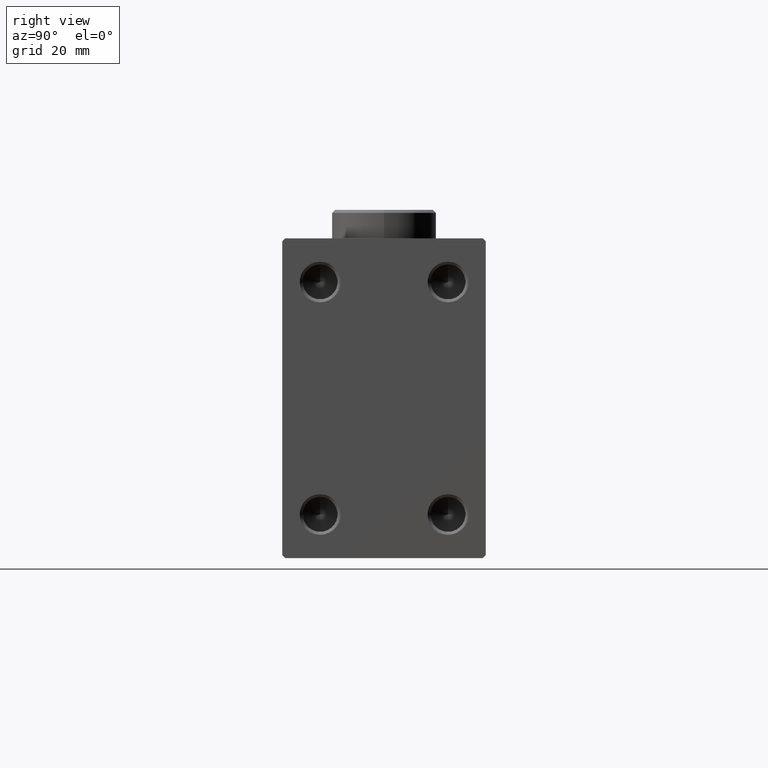
[diagram: clean part render]
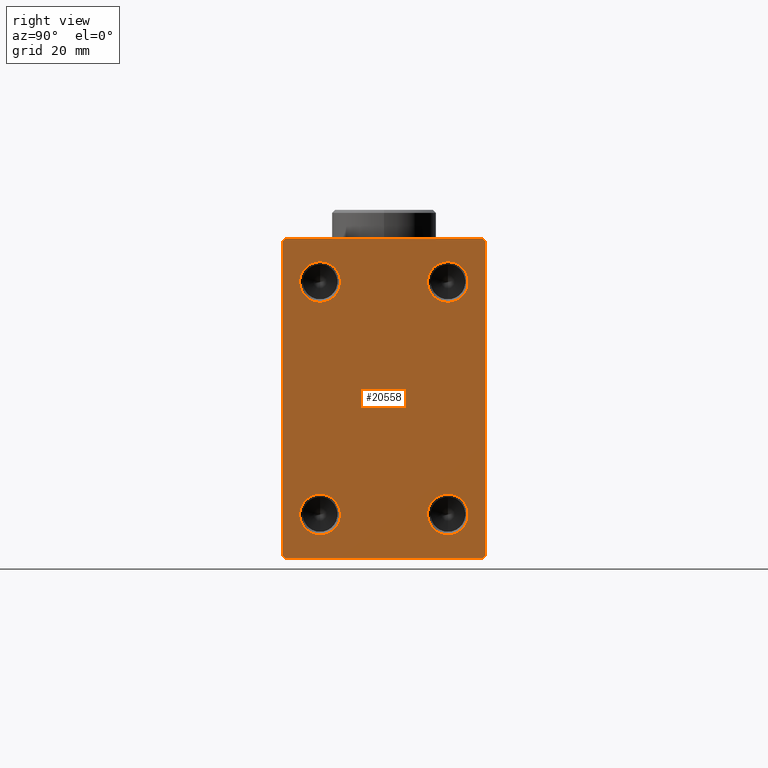
[diagram: same view with one face highlighted and labeled with its STEP entity id]
A machine part, right view. The second image highlights one B-rep face of the part: STEP entity #20558.
In plain terms, the highlighted planar face has unit normal (1, 0, 0).
Its self-contained STEP definition (entity closure, byte-faithful):
#304 = CARTESIAN_POINT ( 'NONE',  ( 96.00000000000000000, -17.49999999999999645, 26.99999999999997158 ) ) ;
#332 = CARTESIAN_POINT ( 'NONE',  ( 96.00000000000000000, -11.00000000000000533, -23.49999999999999289 ) ) ;
#764 = CARTESIAN_POINT ( 'NONE',  ( 96.00000000000000000, -11.00000000000000533, 23.50000000000000000 ) ) ;
#1564 = ORIENTED_EDGE ( 'NONE', *, *, #29986, .F. ) ;
#1891 = DIRECTION ( 'NONE',  ( 1.000000000000000000, -0.000000000000000000, -0.000000000000000000 ) ) ;
#2424 = CARTESIAN_POINT ( 'NONE',  ( 96.00000000000000000, 11.00000000000000178, -20.00000000000000000 ) ) ;
#3357 = ORIENTED_EDGE ( 'NONE', *, *, #34882, .T. ) ;
#3513 = CARTESIAN_POINT ( 'NONE',  ( 96.00000000000000000, -17.49999999999999645, -27.50000000000000711 ) ) ;
#3895 = EDGE_CURVE ( 'NONE', #21149, #45293, #43873, .T. ) ;
#4385 = EDGE_LOOP ( 'NONE', ( #33720, #1564 ) ) ;
#4679 = EDGE_CURVE ( 'NONE', #45293, #43831, #28006, .T. ) ;
#4689 = DIRECTION ( 'NONE',  ( 1.000000000000000000, -0.000000000000000000, -0.000000000000000000 ) ) ;
#4877 = EDGE_CURVE ( 'NONE', #43831, #32060, #13926, .T. ) ;
#4979 = EDGE_CURVE ( 'NONE', #22170, #28805, #42148, .T. ) ;
#5023 = CARTESIAN_POINT ( 'NONE',  ( 96.00000000000000000, -11.00000000000000533, -16.50000000000000711 ) ) ;
#5639 = DIRECTION ( 'NONE',  ( 1.000000000000000000, -0.000000000000000000, -0.000000000000000000 ) ) ;
#6076 = DIRECTION ( 'NONE',  ( 1.000000000000000000, -0.000000000000000000, -0.000000000000000000 ) ) ;
#6542 = ORIENTED_EDGE ( 'NONE', *, *, #16217, .F. ) ;
#7060 = LINE ( 'NONE', #7289, #20551 ) ;
#7175 = DIRECTION ( 'NONE',  ( 1.000000000000000000, 0.000000000000000000, 0.000000000000000000 ) ) ;
#7289 = CARTESIAN_POINT ( 'NONE',  ( 96.00000000000000000, 17.50000000000000711, -27.50000000000001066 ) ) ;
#7347 = CARTESIAN_POINT ( 'NONE',  ( 96.00000000000000000, 17.50000000000000000, 27.49999999999999289 ) ) ;
#7509 = VERTEX_POINT ( 'NONE', #764 ) ;
#7627 = DIRECTION ( 'NONE',  ( 0.000000000000000000, 0.000000000000000000, -1.000000000000000000 ) ) ;
#8159 = AXIS2_PLACEMENT_3D ( 'NONE', #45350, #34094, #34560 ) ;
#8653 = LINE ( 'NONE', #22701, #13144 ) ;
#10232 = LINE ( 'NONE', #14126, #30242 ) ;
#10388 = CIRCLE ( 'NONE', #8159, 3.499999999999989342 ) ;
#10392 = FACE_BOUND ( 'NONE', #20518, .T. ) ;
#10540 = VERTEX_POINT ( 'NONE', #40130 ) ;
#10864 = VERTEX_POINT ( 'NONE', #20022 ) ;
#10933 = CARTESIAN_POINT ( 'NONE',  ( 96.00000000000000000, -17.49999999999999645, 27.49999999999998579 ) ) ;
#11444 = DIRECTION ( 'NONE',  ( 1.000000000000000000, -0.000000000000000000, -0.000000000000000000 ) ) ;
#12337 = ORIENTED_EDGE ( 'NONE', *, *, #27876, .F. ) ;
#12360 = AXIS2_PLACEMENT_3D ( 'NONE', #26039, #35935, #43503 ) ;
#12922 = DIRECTION ( 'NONE',  ( 0.000000000000000000, 0.000000000000000000, -1.000000000000000000 ) ) ;
#13144 = VECTOR ( 'NONE', #19672, 1000.000000000000114 ) ;
#13456 = VECTOR ( 'NONE', #29861, 1000.000000000000114 ) ;
#13484 = AXIS2_PLACEMENT_3D ( 'NONE', #22892, #6076, #19192 ) ;
#13782 = DIRECTION ( 'NONE',  ( 0.000000000000000000, -1.000000000000000000, -1.982541115402065356E-16 ) ) ;
#13926 = LINE ( 'NONE', #25457, #23054 ) ;
#14026 = CIRCLE ( 'NONE', #21396, 3.499999999999989342 ) ;
#14126 = CARTESIAN_POINT ( 'NONE',  ( 96.00000000000000000, 22.24999999999999289, -22.24999999999999289 ) ) ;
#14459 = EDGE_CURVE ( 'NONE', #7509, #17685, #33480, .T. ) ;
#14892 = ORIENTED_EDGE ( 'NONE', *, *, #43328, .F. ) ;
#14955 = FACE_OUTER_BOUND ( 'NONE', #39809, .T. ) ;
#15334 = CARTESIAN_POINT ( 'NONE',  ( 96.00000000000000000, -11.00000000000000533, -20.00000000000000000 ) ) ;
#15965 = CIRCLE ( 'NONE', #43189, 3.499999999999989342 ) ;
#15997 = DIRECTION ( 'NONE',  ( 0.000000000000000000, 0.000000000000000000, -1.000000000000000000 ) ) ;
#16217 = EDGE_CURVE ( 'NONE', #17685, #7509, #17317, .T. ) ;
#16453 = DIRECTION ( 'NONE',  ( 1.000000000000000000, -0.000000000000000000, -0.000000000000000000 ) ) ;
#16858 = AXIS2_PLACEMENT_3D ( 'NONE', #2424, #16453, #15997 ) ;
#17312 = DIRECTION ( 'NONE',  ( 0.000000000000000000, 1.000000000000000000, -9.912705577010325549E-17 ) ) ;
#17317 = CIRCLE ( 'NONE', #37957, 3.499999999999989342 ) ;
#17685 = VERTEX_POINT ( 'NONE', #40048 ) ;
#17780 = CARTESIAN_POINT ( 'NONE',  ( 96.00000000000000000, -17.00000000000000711, -27.50000000000000711 ) ) ;
#18194 = ORIENTED_EDGE ( 'NONE', *, *, #27302, .T. ) ;
#18405 = EDGE_LOOP ( 'NONE', ( #20040, #12337 ) ) ;
#18716 = DIRECTION ( 'NONE',  ( 0.000000000000000000, 0.000000000000000000, -1.000000000000000000 ) ) ;
#19192 = DIRECTION ( 'NONE',  ( 0.000000000000000000, 0.000000000000000000, -1.000000000000000000 ) ) ;
#19463 = CARTESIAN_POINT ( 'NONE',  ( 96.00000000000000000, -22.24999999999998224, 22.24999999999998224 ) ) ;
#19672 = DIRECTION ( 'NONE',  ( -0.000000000000000000, -0.7071067811865500152, 0.7071067811865451302 ) ) ;
#20022 = CARTESIAN_POINT ( 'NONE',  ( 96.00000000000000000, 11.00000000000000178, 16.50000000000001421 ) ) ;
#20040 = ORIENTED_EDGE ( 'NONE', *, *, #33103, .F. ) ;
#20275 = ORIENTED_EDGE ( 'NONE', *, *, #38191, .T. ) ;
#20455 = CIRCLE ( 'NONE', #12360, 3.499999999999989342 ) ;
#20518 = EDGE_LOOP ( 'NONE', ( #35991, #6542 ) ) ;
#20551 = VECTOR ( 'NONE', #38822, 1000.000000000000000 ) ;
#20558 = ADVANCED_FACE ( 'NONE', ( #35713, #10392, #38940, #42377, #14955 ), #35043, .T. ) ;
#20930 = CARTESIAN_POINT ( 'NONE',  ( 96.00000000000000000, 17.50000000000000000, 27.00000000000001066 ) ) ;
#20951 = AXIS2_PLACEMENT_3D ( 'NONE', #26096, #1891, #12922 ) ;
#21149 = VERTEX_POINT ( 'NONE', #32839 ) ;
#21396 = AXIS2_PLACEMENT_3D ( 'NONE', #15334, #11444, #39981 ) ;
#22170 = VERTEX_POINT ( 'NONE', #332 ) ;
#22701 = CARTESIAN_POINT ( 'NONE',  ( 96.00000000000000000, 22.24999999999994316, 22.25000000000009592 ) ) ;
#22892 = CARTESIAN_POINT ( 'NONE',  ( 96.00000000000000000, -11.00000000000000533, -20.00000000000000000 ) ) ;
#23054 = VECTOR ( 'NONE', #36269, 1000.000000000000000 ) ;
#23063 = ORIENTED_EDGE ( 'NONE', *, *, #26241, .T. ) ;
#24235 = CARTESIAN_POINT ( 'NONE',  ( 96.00000000000000000, 11.00000000000000178, 23.50000000000000000 ) ) ;
#24456 = CARTESIAN_POINT ( 'NONE',  ( 96.00000000000000000, 0.000000000000000000, 0.000000000000000000 ) ) ;
#24531 = EDGE_CURVE ( 'NONE', #38209, #33152, #8653, .T. ) ;
#25136 = ORIENTED_EDGE ( 'NONE', *, *, #4679, .T. ) ;
#25457 = CARTESIAN_POINT ( 'NONE',  ( 96.00000000000000000, -22.25000000000024514, -22.24999999999963052 ) ) ;
#25523 = EDGE_CURVE ( 'NONE', #43133, #26589, #43347, .T. ) ;
#26039 = CARTESIAN_POINT ( 'NONE',  ( 96.00000000000000000, 11.00000000000000178, 20.00000000000000711 ) ) ;
#26096 = CARTESIAN_POINT ( 'NONE',  ( 96.00000000000000000, -11.00000000000000533, 20.00000000000000711 ) ) ;
#26241 = EDGE_CURVE ( 'NONE', #10540, #38209, #7060, .T. ) ;
#26589 = VERTEX_POINT ( 'NONE', #31207 ) ;
#26872 = EDGE_LOOP ( 'NONE', ( #14892, #41489 ) ) ;
#27302 = EDGE_CURVE ( 'NONE', #37454, #10540, #10232, .T. ) ;
#27404 = CARTESIAN_POINT ( 'NONE',  ( 96.00000000000000000, 17.00000000000001421, 27.49999999999999289 ) ) ;
#27876 = EDGE_CURVE ( 'NONE', #10864, #39392, #10388, .T. ) ;
#28006 = LINE ( 'NONE', #10933, #32607 ) ;
#28208 = DIRECTION ( 'NONE',  ( -0.000000000000000000, 0.7071067811865474617, 0.7071067811865474617 ) ) ;
#28487 = CARTESIAN_POINT ( 'NONE',  ( 96.00000000000000000, -11.00000000000000533, 20.00000000000000711 ) ) ;
#28805 = VERTEX_POINT ( 'NONE', #5023 ) ;
#29861 = DIRECTION ( 'NONE',  ( 0.000000000000000000, -0.7071067811865474617, -0.7071067811865474617 ) ) ;
#29986 = EDGE_CURVE ( 'NONE', #26589, #43133, #15965, .T. ) ;
#30242 = VECTOR ( 'NONE', #28208, 1000.000000000000114 ) ;
#30526 = DIRECTION ( 'NONE',  ( 0.000000000000000000, 0.000000000000000000, -1.000000000000000000 ) ) ;
#30871 = VECTOR ( 'NONE', #17312, 1000.000000000000000 ) ;
#31207 = CARTESIAN_POINT ( 'NONE',  ( 96.00000000000000000, 11.00000000000000178, -23.49999999999999289 ) ) ;
#31393 = LINE ( 'NONE', #3513, #30871 ) ;
#31460 = DIRECTION ( 'NONE',  ( 0.000000000000000000, 0.000000000000000000, -1.000000000000000000 ) ) ;
#32060 = VERTEX_POINT ( 'NONE', #17780 ) ;
#32311 = CARTESIAN_POINT ( 'NONE',  ( 96.00000000000000000, -17.49999999999999645, -27.00000000000000711 ) ) ;
#32607 = VECTOR ( 'NONE', #31460, 1000.000000000000000 ) ;
#32839 = CARTESIAN_POINT ( 'NONE',  ( 96.00000000000000000, -16.99999999999997868, 27.49999999999998579 ) ) ;
#33103 = EDGE_CURVE ( 'NONE', #39392, #10864, #20455, .T. ) ;
#33152 = VERTEX_POINT ( 'NONE', #27404 ) ;
#33243 = ORIENTED_EDGE ( 'NONE', *, *, #4877, .T. ) ;
#33480 = CIRCLE ( 'NONE', #20951, 3.499999999999989342 ) ;
#33519 = CARTESIAN_POINT ( 'NONE',  ( 96.00000000000000000, 11.00000000000000178, -20.00000000000000000 ) ) ;
#33720 = ORIENTED_EDGE ( 'NONE', *, *, #25523, .F. ) ;
#33790 = ORIENTED_EDGE ( 'NONE', *, *, #3895, .T. ) ;
#34094 = DIRECTION ( 'NONE',  ( 1.000000000000000000, -0.000000000000000000, -0.000000000000000000 ) ) ;
#34560 = DIRECTION ( 'NONE',  ( 0.000000000000000000, 0.000000000000000000, -1.000000000000000000 ) ) ;
#34771 = CARTESIAN_POINT ( 'NONE',  ( 96.00000000000000000, 16.99999999999997868, -27.50000000000001066 ) ) ;
#34882 = EDGE_CURVE ( 'NONE', #32060, #37454, #31393, .T. ) ;
#35043 = PLANE ( 'NONE',  #36573 ) ;
#35713 = FACE_BOUND ( 'NONE', #18405, .T. ) ;
#35935 = DIRECTION ( 'NONE',  ( 1.000000000000000000, -0.000000000000000000, -0.000000000000000000 ) ) ;
#35991 = ORIENTED_EDGE ( 'NONE', *, *, #14459, .F. ) ;
#36269 = DIRECTION ( 'NONE',  ( -0.000000000000000000, 0.7071067811865378028, -0.7071067811865573427 ) ) ;
#36573 = AXIS2_PLACEMENT_3D ( 'NONE', #24456, #7175, #7627 ) ;
#37454 = VERTEX_POINT ( 'NONE', #34771 ) ;
#37550 = VECTOR ( 'NONE', #13782, 1000.000000000000000 ) ;
#37957 = AXIS2_PLACEMENT_3D ( 'NONE', #28487, #4689, #18716 ) ;
#38191 = EDGE_CURVE ( 'NONE', #33152, #21149, #38883, .T. ) ;
#38209 = VERTEX_POINT ( 'NONE', #20930 ) ;
#38822 = DIRECTION ( 'NONE',  ( 0.000000000000000000, -1.261617073437677752E-16, 1.000000000000000000 ) ) ;
#38883 = LINE ( 'NONE', #7347, #37550 ) ;
#38940 = FACE_BOUND ( 'NONE', #26872, .T. ) ;
#39392 = VERTEX_POINT ( 'NONE', #24235 ) ;
#39809 = EDGE_LOOP ( 'NONE', ( #20275, #33790, #25136, #33243, #3357, #18194, #23063, #43302 ) ) ;
#39981 = DIRECTION ( 'NONE',  ( 0.000000000000000000, 0.000000000000000000, -1.000000000000000000 ) ) ;
#40048 = CARTESIAN_POINT ( 'NONE',  ( 96.00000000000000000, -11.00000000000000533, 16.50000000000001421 ) ) ;
#40130 = CARTESIAN_POINT ( 'NONE',  ( 96.00000000000000000, 17.50000000000000711, -26.99999999999998224 ) ) ;
#41454 = CARTESIAN_POINT ( 'NONE',  ( 96.00000000000000000, 11.00000000000000178, -16.50000000000000711 ) ) ;
#41489 = ORIENTED_EDGE ( 'NONE', *, *, #4979, .F. ) ;
#42148 = CIRCLE ( 'NONE', #13484, 3.499999999999989342 ) ;
#42377 = FACE_BOUND ( 'NONE', #4385, .T. ) ;
#43133 = VERTEX_POINT ( 'NONE', #41454 ) ;
#43189 = AXIS2_PLACEMENT_3D ( 'NONE', #33519, #5639, #30526 ) ;
#43302 = ORIENTED_EDGE ( 'NONE', *, *, #24531, .T. ) ;
#43328 = EDGE_CURVE ( 'NONE', #28805, #22170, #14026, .T. ) ;
#43347 = CIRCLE ( 'NONE', #16858, 3.499999999999989342 ) ;
#43503 = DIRECTION ( 'NONE',  ( 0.000000000000000000, 0.000000000000000000, -1.000000000000000000 ) ) ;
#43831 = VERTEX_POINT ( 'NONE', #32311 ) ;
#43873 = LINE ( 'NONE', #19463, #13456 ) ;
#45293 = VERTEX_POINT ( 'NONE', #304 ) ;
#45350 = CARTESIAN_POINT ( 'NONE',  ( 96.00000000000000000, 11.00000000000000178, 20.00000000000000711 ) ) ;